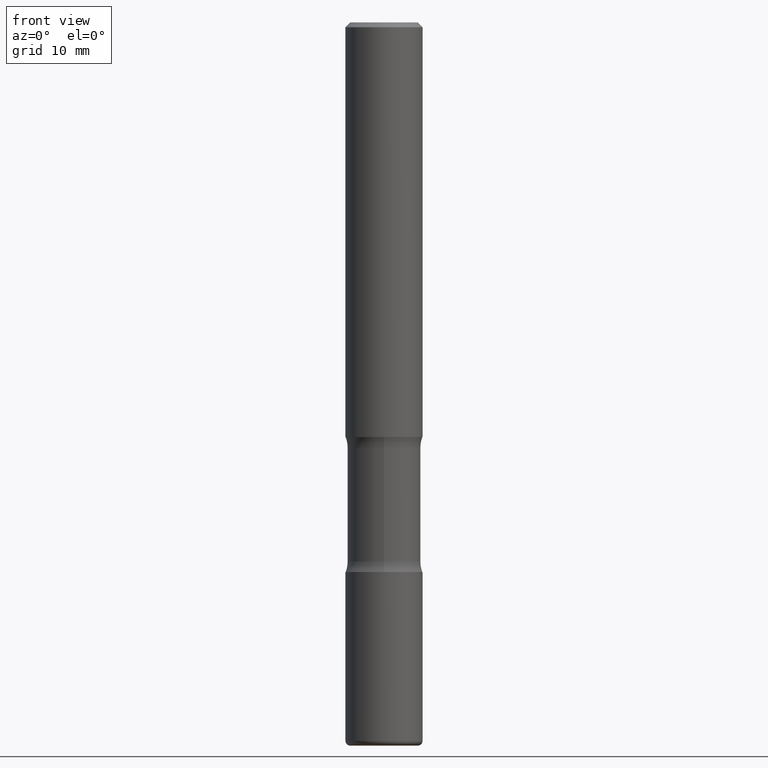
[diagram: clean part render]
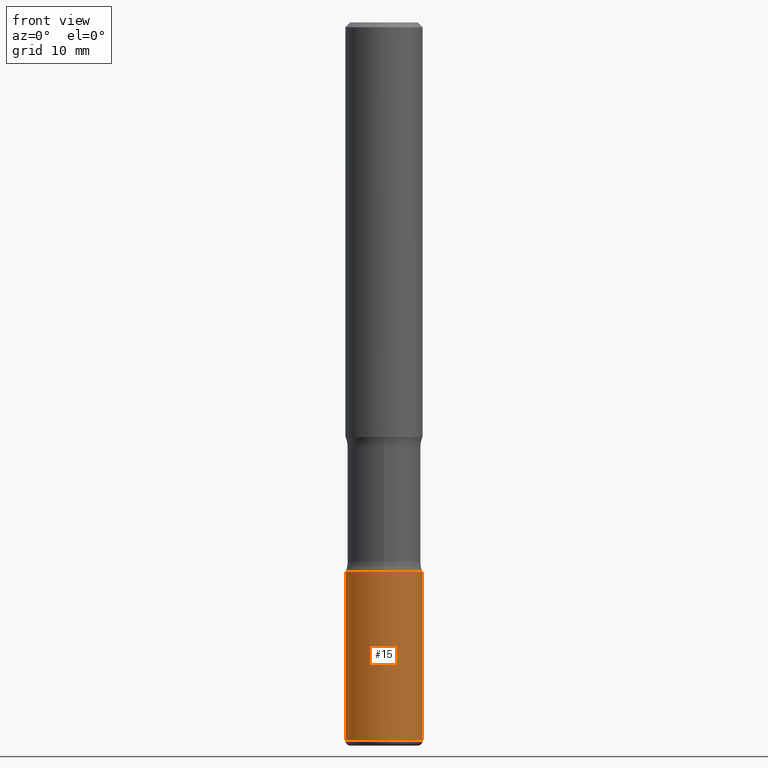
[diagram: same view with one face highlighted and labeled with its STEP entity id]
A machine part, front view. The second image highlights one B-rep face of the part: STEP entity #15.
In plain terms, the highlighted cylindrical surface (partial cylindrical patch) has radius 4.0005 mm, axis along (-0, 0, 1).
Its self-contained STEP definition (entity closure, byte-faithful):
#7 = AXIS2_PLACEMENT_3D ( 'NONE', #51, #301, #9 ) ;
#9 = DIRECTION ( 'NONE',  ( 1.000000000000000000, -6.982962677686272233E-15, 0.000000000000000000 ) ) ;
#14 = CARTESIAN_POINT ( 'NONE',  ( 0.1575000000000000844, -8.935049894233489031E-15, -2.244099999999999540 ) ) ;
#15 = ADVANCED_FACE ( 'NONE', ( #201 ), #378, .T. ) ;
#21 = ORIENTED_EDGE ( 'NONE', *, *, #131, .T. ) ;
#33 = CARTESIAN_POINT ( 'NONE',  ( -0.1575000000000000289, -9.121759106138672895E-15, -2.933100000000000041 ) ) ;
#43 = VERTEX_POINT ( 'NONE', #244 ) ;
#51 = CARTESIAN_POINT ( 'NONE',  ( 7.172804555421624566E-29, -1.024086391496083050E-14, -2.933100000000000041 ) ) ;
#67 = VERTEX_POINT ( 'NONE', #33 ) ;
#103 = EDGE_CURVE ( 'NONE', #67, #129, #347, .T. ) ;
#129 = VERTEX_POINT ( 'NONE', #265 ) ;
#131 = EDGE_CURVE ( 'NONE', #67, #43, #132, .T. ) ;
#132 = CIRCLE ( 'NONE', #7, 0.1575000000000000566 ) ;
#173 = DIRECTION ( 'NONE',  ( -2.445468806185136597E-29, 3.491481338843145583E-15, 1.000000000000000000 ) ) ;
#184 = VECTOR ( 'NONE', #436, 39.37007874015748143 ) ;
#192 = VECTOR ( 'NONE', #214, 39.37007874015748143 ) ;
#200 = EDGE_CURVE ( 'NONE', #43, #520, #424, .T. ) ;
#201 = FACE_OUTER_BOUND ( 'NONE', #522, .T. ) ;
#214 = DIRECTION ( 'NONE',  ( -2.445468806185136877E-29, 3.491481338843145188E-15, 1.000000000000000000 ) ) ;
#244 = CARTESIAN_POINT ( 'NONE',  ( 0.1575000000000000289, -1.134068053669641877E-14, -2.933100000000000041 ) ) ;
#250 = CARTESIAN_POINT ( 'NONE',  ( 5.487876547960064752E-29, -7.835233272497900762E-15, -2.244099999999999540 ) ) ;
#265 = CARTESIAN_POINT ( 'NONE',  ( -0.1575000000000000844, -7.918943784907207238E-15, -2.244099999999999540 ) ) ;
#279 = ORIENTED_EDGE ( 'NONE', *, *, #103, .F. ) ;
#291 = EDGE_CURVE ( 'NONE', #129, #520, #340, .T. ) ;
#301 = DIRECTION ( 'NONE',  ( -2.445468806185136597E-29, 3.491481338843145583E-15, 1.000000000000000000 ) ) ;
#340 = CIRCLE ( 'NONE', #543, 0.1575000000000000844 ) ;
#342 = CARTESIAN_POINT ( 'NONE',  ( -0.1575000000000000844, 1.119104808822158392E-15, -7.747322767151481189E-30 ) ) ;
#347 = LINE ( 'NONE', #342, #184 ) ;
#375 = DIRECTION ( 'NONE',  ( 1.000000000000000000, -6.982962677686267499E-15, 4.876176775795936353E-29 ) ) ;
#378 = CYLINDRICAL_SURFACE ( 'NONE', #524, 0.1575000000000000844 ) ;
#406 = ORIENTED_EDGE ( 'NONE', *, *, #291, .F. ) ;
#420 = DIRECTION ( 'NONE',  ( 1.000000000000000000, -6.982962677686264344E-15, 0.000000000000000000 ) ) ;
#424 = LINE ( 'NONE', #546, #192 ) ;
#436 = DIRECTION ( 'NONE',  ( -2.445468806185136877E-29, 3.491481338843145188E-15, 1.000000000000000000 ) ) ;
#459 = DIRECTION ( 'NONE',  ( -2.445468806185136597E-29, 3.491481338843145583E-15, 1.000000000000000000 ) ) ;
#489 = ORIENTED_EDGE ( 'NONE', *, *, #200, .T. ) ;
#520 = VERTEX_POINT ( 'NONE', #14 ) ;
#522 = EDGE_LOOP ( 'NONE', ( #279, #21, #489, #406 ) ) ;
#524 = AXIS2_PLACEMENT_3D ( 'NONE', #551, #459, #375 ) ;
#543 = AXIS2_PLACEMENT_3D ( 'NONE', #250, #173, #420 ) ;
#546 = CARTESIAN_POINT ( 'NONE',  ( 0.1575000000000000844, -1.099816621735587677E-15, 7.679978421878603638E-30 ) ) ;
#551 = CARTESIAN_POINT ( 'NONE',  ( 0.000000000000000000, 0.000000000000000000, 0.000000000000000000 ) ) ;